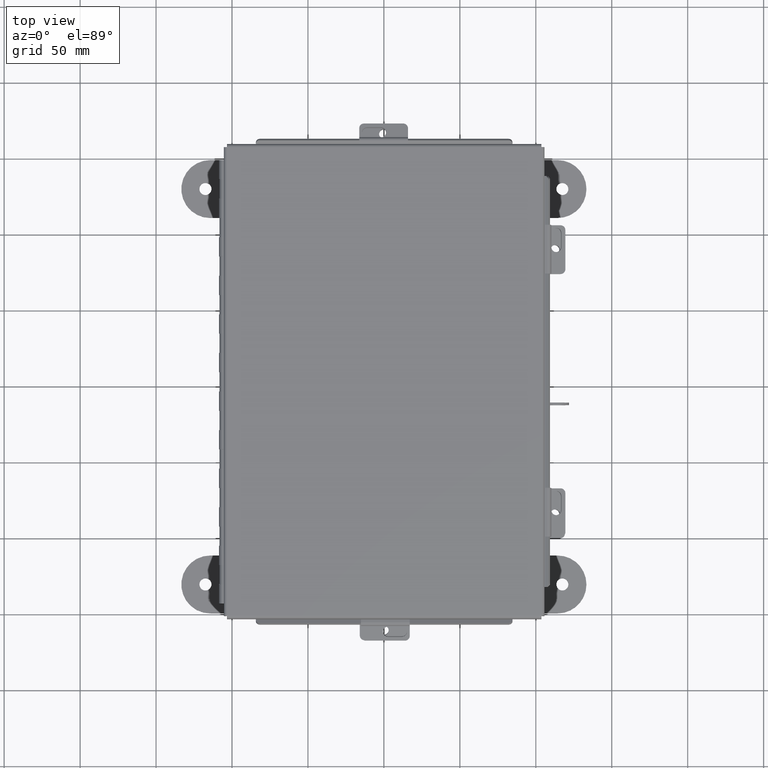
[diagram: clean part render]
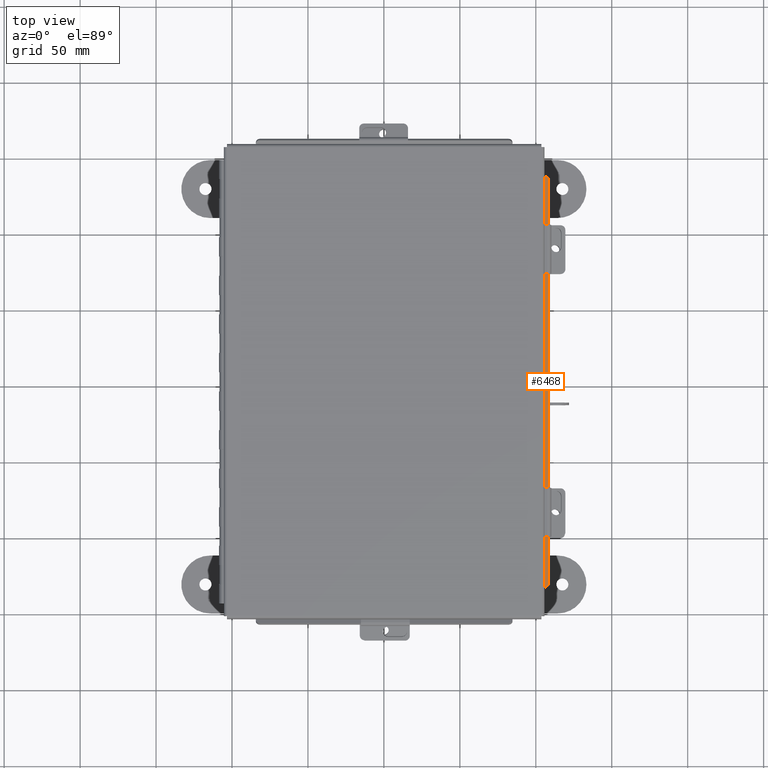
[diagram: same view with one face highlighted and labeled with its STEP entity id]
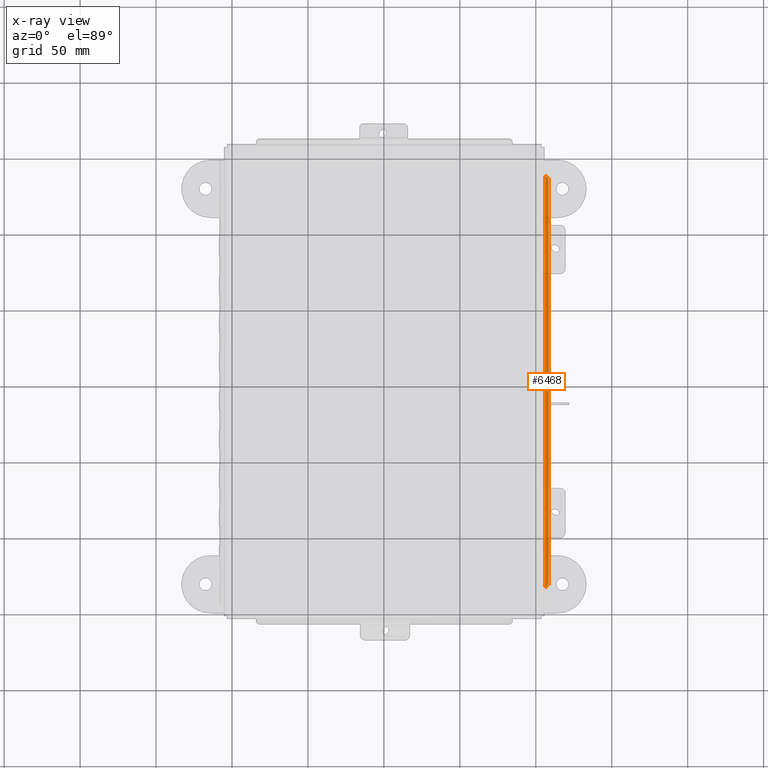
[diagram: x-ray of the same camera — body ghosted, the highlighted face saturated]
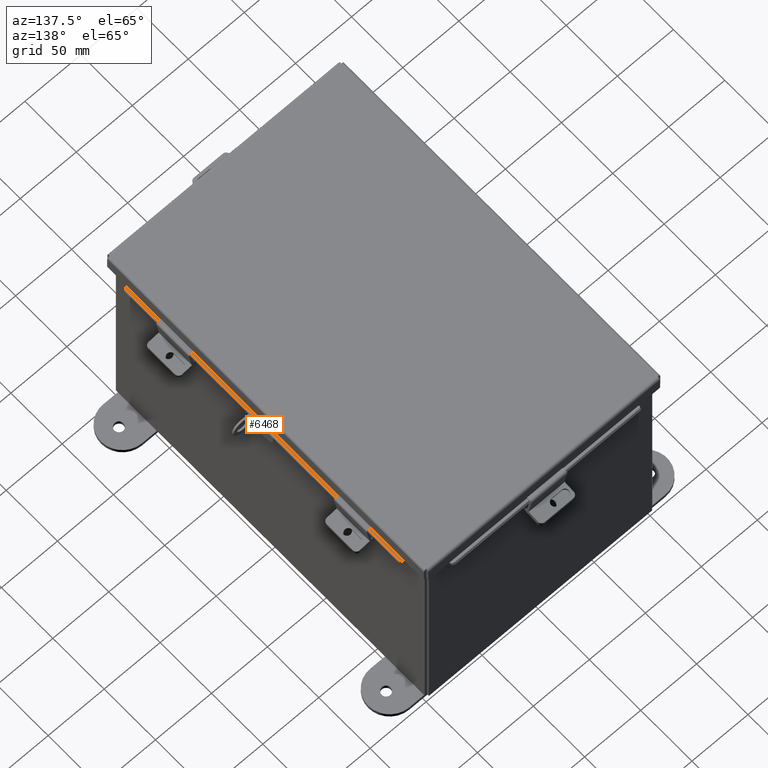
[diagram: same view with one face highlighted and labeled with its STEP entity id]
A machine part, top view. The second image highlights one B-rep face of the part: STEP entity #6468.
The next image is the same camera in x-ray: the body ghosted, the highlighted face saturated — about 0% of this face is hidden behind the body in this view.
A second angle (auxiliary view) of the same face is appended — the face is thin or edge-on in the first view.
In plain terms, the highlighted planar face has unit normal (-0.5, 0, 0.866).
Its self-contained STEP definition (entity closure, byte-faithful):
#500 = CARTESIAN_POINT ( 'NONE',  ( -1.250069589632089700, 0.0000000000000000000, 2.165184042239560300 ) ) ;
#1119 = ORIENTED_EDGE ( 'NONE', *, *, #4524, .T. ) ;
#1536 = EDGE_LOOP ( 'NONE', ( #6268, #15412, #11858, #1119, #8371, #8594 ) ) ;
#1686 = LINE ( 'NONE', #4655, #14298 ) ;
#1737 = DIRECTION ( 'NONE',  ( -0.8660254037844381500, 4.782469237902363800E-030, -0.5000000000000011100 ) ) ;
#2241 = DIRECTION ( 'NONE',  ( -0.8660254037844380400, -9.059668427480751600E-015, -0.5000000000000007800 ) ) ;
#2609 = VERTEX_POINT ( 'NONE', #13426 ) ;
#2676 = FACE_OUTER_BOUND ( 'NONE', #1536, .T. ) ;
#2695 = CARTESIAN_POINT ( 'NONE',  ( -4.156250000000024000, -5.324478932188136500, 0.4872999999999989000 ) ) ;
#2921 = PLANE ( 'NONE',  #13124 ) ;
#3086 = CARTESIAN_POINT ( 'NONE',  ( -4.260706350946133400, -5.324478932188136500, 0.4269920976626969100 ) ) ;
#3109 = LINE ( 'NONE', #6611, #5956 ) ;
#3466 = EDGE_CURVE ( 'NONE', #14110, #9514, #3846, .T. ) ;
#3535 = CARTESIAN_POINT ( 'NONE',  ( -4.260706350946133400, -5.224478932188136900, 0.4269920976626969100 ) ) ;
#3769 = VERTEX_POINT ( 'NONE', #13974 ) ;
#3846 = LINE ( 'NONE', #2695, #7085 ) ;
#4228 = DIRECTION ( 'NONE',  ( 1.026146606440443600E-016, 1.000000000000000000, -5.130733032203049600E-017 ) ) ;
#4476 = CARTESIAN_POINT ( 'NONE',  ( -4.169750000000023600, -5.324478932188136500, 0.4795057713659400300 ) ) ;
#4481 = CARTESIAN_POINT ( 'NONE',  ( -4.174103810567690000, 5.224478932188132400, 0.4769920976626977300 ) ) ;
#4524 = EDGE_CURVE ( 'NONE', #3769, #2609, #9608, .T. ) ;
#4655 = CARTESIAN_POINT ( 'NONE',  ( -4.260706350946133400, 5.324478932188133000, 0.4269920976626969100 ) ) ;
#5135 = DIRECTION ( 'NONE',  ( 0.5000000000000010000, 5.990412499022031800E-030, -0.8660254037844380400 ) ) ;
#5330 = VERTEX_POINT ( 'NONE', #12082 ) ;
#5689 = DIRECTION ( 'NONE',  ( -0.8660254037844377100, 0.0000000000000000000, -0.5000000000000015500 ) ) ;
#5956 = VECTOR ( 'NONE', #4228, 39.37007874015748100 ) ;
#6268 = ORIENTED_EDGE ( 'NONE', *, *, #3466, .F. ) ;
#6468 = ADVANCED_FACE ( 'NONE', ( #2676 ), #2921, .T. ) ;
#6553 = EDGE_CURVE ( 'NONE', #3769, #6804, #14897, .T. ) ;
#6611 = CARTESIAN_POINT ( 'NONE',  ( -4.169750000000023600, -5.324478932188136500, 0.4795057713659400300 ) ) ;
#6804 = VERTEX_POINT ( 'NONE', #3535 ) ;
#7085 = VECTOR ( 'NONE', #11217, 39.37007874015748100 ) ;
#7350 = EDGE_CURVE ( 'NONE', #5330, #2609, #1686, .T. ) ;
#8371 = ORIENTED_EDGE ( 'NONE', *, *, #7350, .F. ) ;
#8594 = ORIENTED_EDGE ( 'NONE', *, *, #13958, .F. ) ;
#8756 = EDGE_CURVE ( 'NONE', #14110, #6804, #9466, .T. ) ;
#9060 = DIRECTION ( 'NONE',  ( 0.5000000000000011100, 5.990412499022032500E-030, -0.8660254037844381500 ) ) ;
#9466 = CIRCLE ( 'NONE', #10058, 0.1000000000000004100 ) ;
#9514 = VERTEX_POINT ( 'NONE', #4476 ) ;
#9556 = VECTOR ( 'NONE', #14011, 39.37007874015748100 ) ;
#9608 = CIRCLE ( 'NONE', #10344, 0.1000000000000004100 ) ;
#10058 = AXIS2_PLACEMENT_3D ( 'NONE', #12451, #5135, #13676 ) ;
#10344 = AXIS2_PLACEMENT_3D ( 'NONE', #4481, #13014, #5689 ) ;
#11217 = DIRECTION ( 'NONE',  ( 0.8660254037844380400, -4.782469237902363100E-030, 0.5000000000000010000 ) ) ;
#11858 = ORIENTED_EDGE ( 'NONE', *, *, #6553, .F. ) ;
#12082 = CARTESIAN_POINT ( 'NONE',  ( -4.169750000000023600, 5.324478932188133000, 0.4795057713659400300 ) ) ;
#12451 = CARTESIAN_POINT ( 'NONE',  ( -4.174103810567690000, -5.224478932188136900, 0.4769920976627064500 ) ) ;
#13014 = DIRECTION ( 'NONE',  ( 0.5000000000000010000, 5.990412499022031800E-030, -0.8660254037844380400 ) ) ;
#13124 = AXIS2_PLACEMENT_3D ( 'NONE', #500, #9060, #1737 ) ;
#13426 = CARTESIAN_POINT ( 'NONE',  ( -4.174103810567690900, 5.324478932188134700, 0.4769920976626966200 ) ) ;
#13676 = DIRECTION ( 'NONE',  ( -0.8660254037844377100, 0.0000000000000000000, -0.5000000000000015500 ) ) ;
#13958 = EDGE_CURVE ( 'NONE', #9514, #5330, #3109, .T. ) ;
#13974 = CARTESIAN_POINT ( 'NONE',  ( -4.260706350946133400, 5.224478932188132400, 0.4269920976626969100 ) ) ;
#14011 = DIRECTION ( 'NONE',  ( 1.102734587254376400E-030, -1.000000000000000000, 7.543482406175925400E-030 ) ) ;
#14110 = VERTEX_POINT ( 'NONE', #15402 ) ;
#14298 = VECTOR ( 'NONE', #2241, 39.37007874015748100 ) ;
#14897 = LINE ( 'NONE', #3086, #9556 ) ;
#15402 = CARTESIAN_POINT ( 'NONE',  ( -4.174103810567690000, -5.324478932188136500, 0.4769920976627064500 ) ) ;
#15412 = ORIENTED_EDGE ( 'NONE', *, *, #8756, .T. ) ;